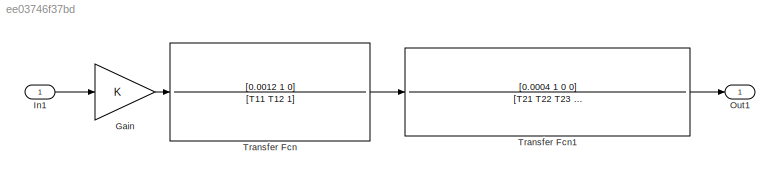
MODEL slx_ee03746f37bd
KIND model
CONFIG AbsTol = auto
CONFIG EnableMultiTasking = off
CONFIG FixedStep = auto
CONFIG MaxStep = auto
CONFIG MinStep = auto
CONFIG RelTol = 1e-3
CONFIG SampleTimeConstraint = Unconstrained
CONFIG Solver = VariableStepAuto
CONFIG SolverName = VariableStepAuto
CONFIG StartTime = 0.0
CONFIG StopTime = 10.0
WORKSPACE source: mxarray member
WORKSPACE K = 0.00399
WORKSPACE T11 = 0.1738
WORKSPACE T12 = 144.88
WORKSPACE T21 = 2.04e-05
WORKSPACE T22 = 0.0511
WORKSPACE T23 = 0.1899
BLOCK [Gain] Gain
  Gain = K
BLOCK [Inport] In1
BLOCK [Outport] Out1
BLOCK [TransferFcn] Transfer Fcn
  Denominator = [T11 T12 1]
  Numerator = [0.0012 1 0]
BLOCK [TransferFcn] Transfer Fcn1
  Denominator = [T21 T22 T23 1]
  Numerator = [0.0004 1 0 0]
LINE Gain:1 -> Transfer Fcn:1
LINE In1:1 -> Gain:1
LINE Transfer Fcn1:1 -> Out1:1
LINE Transfer Fcn:1 -> Transfer Fcn1:1
